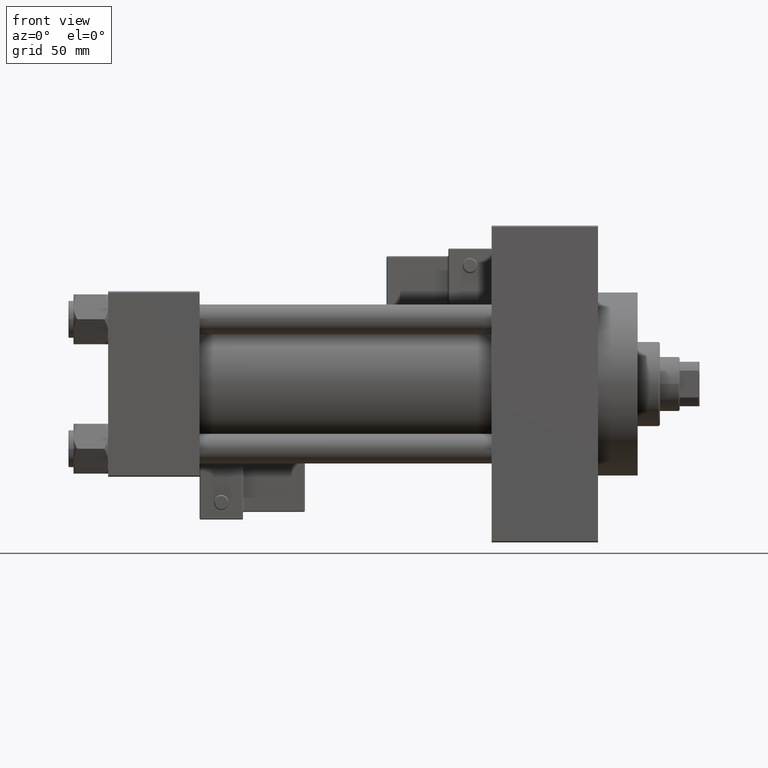
[diagram: clean part render]
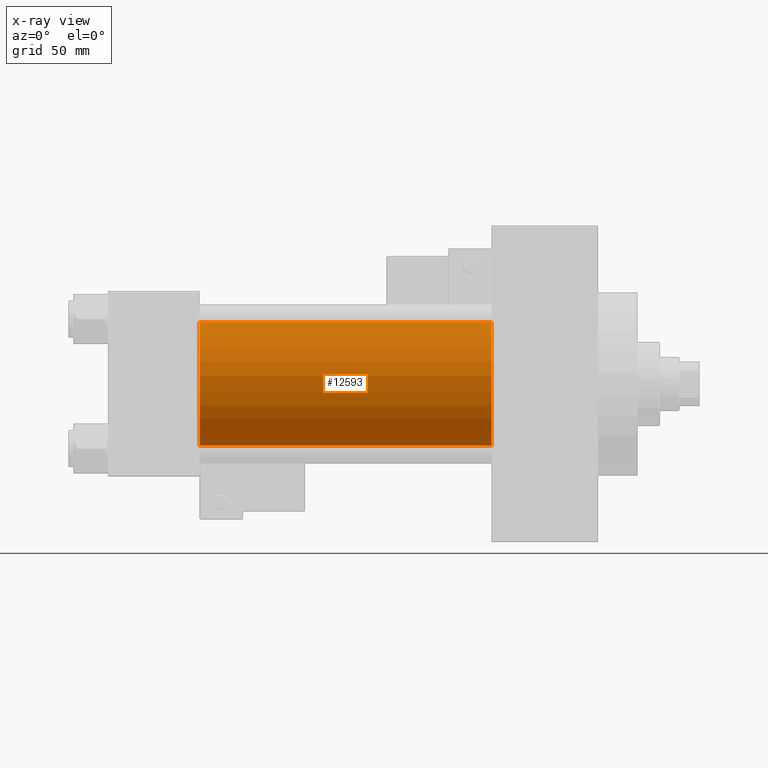
[diagram: x-ray — body ghosted, one internal face saturated and labeled with its STEP entity id]
A machine part, front view, then the same camera in x-ray: the body is ghosted and one INTERNAL B-rep face — a face not visible from any outside direction — is saturated and labeled: STEP entity #12593.
In plain terms, the highlighted cylindrical surface (partial cylindrical patch) has radius 25 mm, axis along (-1, -0, -0).
Its self-contained STEP definition (entity closure, byte-faithful):
#562 = CARTESIAN_POINT ( 'NONE',  ( 155.0000000000000000, -2.602085213965210642E-15, 25.00000000000000000 ) ) ;
#4403 = EDGE_CURVE ( 'NONE', #34911, #41627, #9388, .T. ) ;
#8315 = EDGE_CURVE ( 'NONE', #45210, #37142, #39883, .T. ) ;
#9271 = CARTESIAN_POINT ( 'NONE',  ( 155.0000000000000000, -2.602085213965210642E-15, 0.000000000000000000 ) ) ;
#9388 = LINE ( 'NONE', #24613, #23332 ) ;
#9511 = DIRECTION ( 'NONE',  ( 1.000000000000000000, 0.000000000000000000, 0.000000000000000000 ) ) ;
#10012 = VECTOR ( 'NONE', #43639, 1000.000000000000000 ) ;
#12593 = ADVANCED_FACE ( 'NONE', ( #15224 ), #41690, .F. ) ;
#15224 = FACE_OUTER_BOUND ( 'NONE', #15785, .T. ) ;
#15785 = EDGE_LOOP ( 'NONE', ( #36617, #46629, #44435, #37734 ) ) ;
#19663 = CIRCLE ( 'NONE', #24459, 25.00000000000000000 ) ;
#20373 = CARTESIAN_POINT ( 'NONE',  ( 155.0000000000000000, 4.595317839031724996E-16, -25.00000000000000000 ) ) ;
#20656 = EDGE_CURVE ( 'NONE', #41627, #37142, #19663, .T. ) ;
#21528 = DIRECTION ( 'NONE',  ( 0.000000000000000000, 0.000000000000000000, 1.000000000000000000 ) ) ;
#22667 = AXIS2_PLACEMENT_3D ( 'NONE', #38220, #49194, #21528 ) ;
#23332 = VECTOR ( 'NONE', #47839, 1000.000000000000000 ) ;
#24459 = AXIS2_PLACEMENT_3D ( 'NONE', #44442, #47926, #28931 ) ;
#24613 = CARTESIAN_POINT ( 'NONE',  ( 155.0000000000000000, -2.602085213965210642E-15, 25.00000000000000000 ) ) ;
#27754 = CARTESIAN_POINT ( 'NONE',  ( 37.00000000000000000, -2.602085213965210642E-15, 25.00000000000000000 ) ) ;
#28381 = CARTESIAN_POINT ( 'NONE',  ( 155.0000000000000000, 4.595317839031724996E-16, -25.00000000000000000 ) ) ;
#28931 = DIRECTION ( 'NONE',  ( 0.000000000000000000, 0.000000000000000000, -1.000000000000000000 ) ) ;
#32485 = DIRECTION ( 'NONE',  ( 0.000000000000000000, 0.000000000000000000, -1.000000000000000000 ) ) ;
#33846 = EDGE_CURVE ( 'NONE', #34911, #45210, #35160, .T. ) ;
#34911 = VERTEX_POINT ( 'NONE', #562 ) ;
#35160 = CIRCLE ( 'NONE', #37539, 25.00000000000000000 ) ;
#36617 = ORIENTED_EDGE ( 'NONE', *, *, #33846, .T. ) ;
#37142 = VERTEX_POINT ( 'NONE', #39058 ) ;
#37539 = AXIS2_PLACEMENT_3D ( 'NONE', #9271, #9511, #32485 ) ;
#37734 = ORIENTED_EDGE ( 'NONE', *, *, #4403, .F. ) ;
#38220 = CARTESIAN_POINT ( 'NONE',  ( 155.0000000000000000, -2.602085213965210642E-15, 0.000000000000000000 ) ) ;
#39058 = CARTESIAN_POINT ( 'NONE',  ( 37.00000000000000000, 4.595317839031724996E-16, -25.00000000000000000 ) ) ;
#39883 = LINE ( 'NONE', #28381, #10012 ) ;
#41627 = VERTEX_POINT ( 'NONE', #27754 ) ;
#41690 = CYLINDRICAL_SURFACE ( 'NONE', #22667, 25.00000000000000000 ) ;
#43639 = DIRECTION ( 'NONE',  ( -1.000000000000000000, -0.000000000000000000, -0.000000000000000000 ) ) ;
#44435 = ORIENTED_EDGE ( 'NONE', *, *, #20656, .F. ) ;
#44442 = CARTESIAN_POINT ( 'NONE',  ( 37.00000000000000000, -2.602085213965210642E-15, 0.000000000000000000 ) ) ;
#45210 = VERTEX_POINT ( 'NONE', #20373 ) ;
#46629 = ORIENTED_EDGE ( 'NONE', *, *, #8315, .T. ) ;
#47839 = DIRECTION ( 'NONE',  ( -1.000000000000000000, -0.000000000000000000, -0.000000000000000000 ) ) ;
#47926 = DIRECTION ( 'NONE',  ( 1.000000000000000000, 0.000000000000000000, 0.000000000000000000 ) ) ;
#49194 = DIRECTION ( 'NONE',  ( -1.000000000000000000, -0.000000000000000000, -0.000000000000000000 ) ) ;